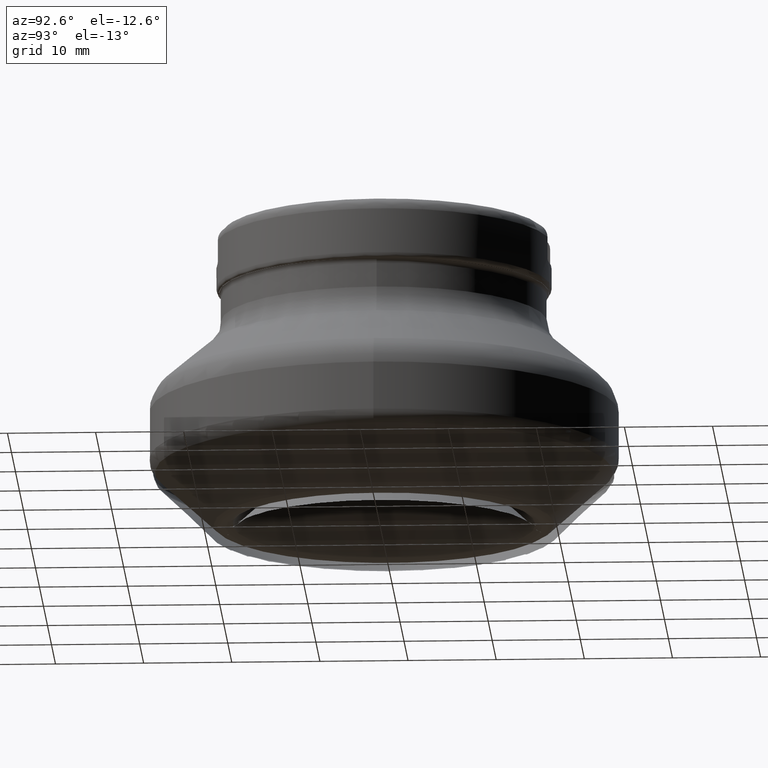
[diagram: clean part render]
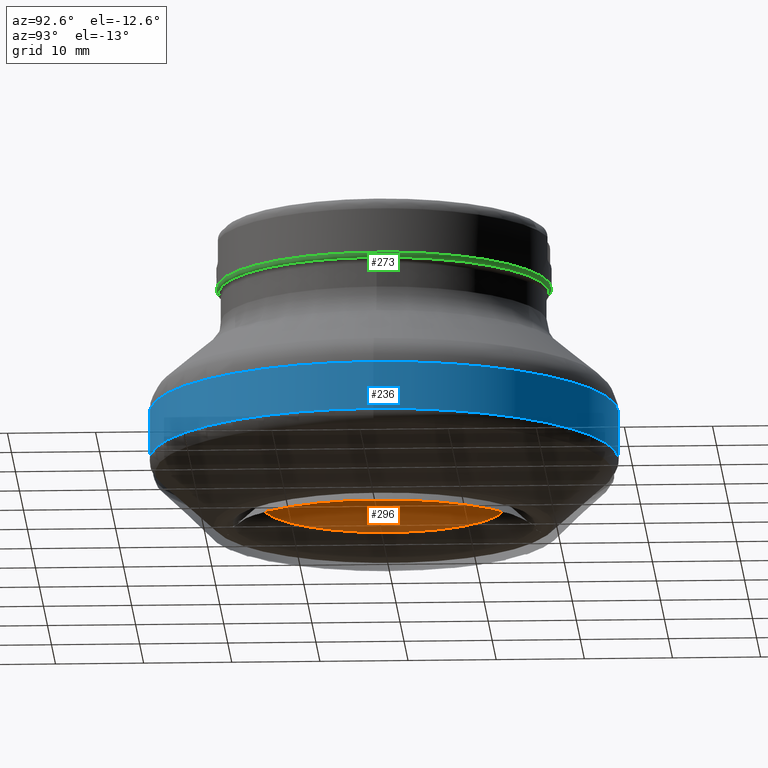
[diagram: same view with three faces highlighted in distinct colors, each labeled with its STEP entity id]
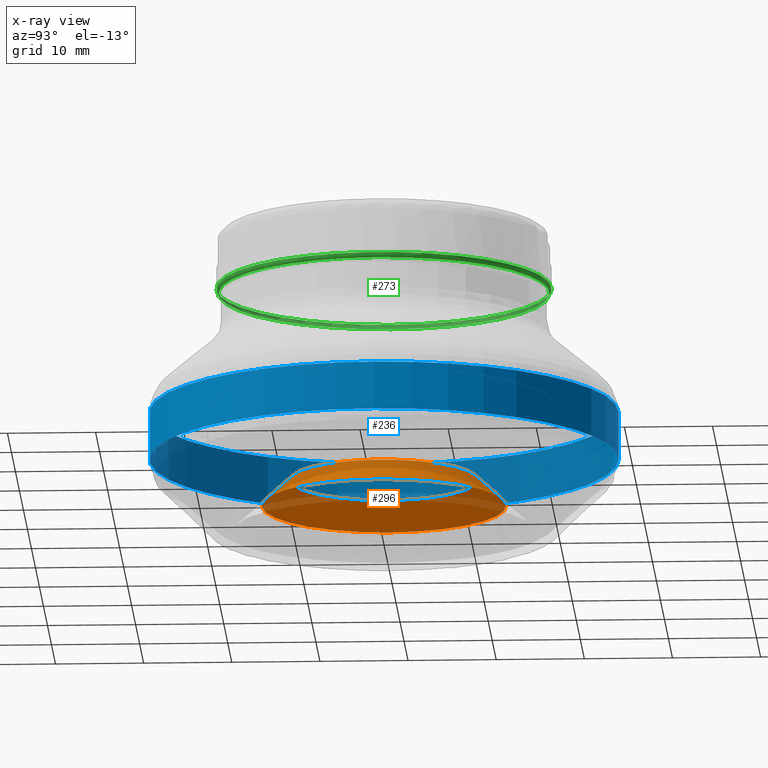
[diagram: x-ray of the same camera — body ghosted, the three highlighted faces saturated]
A machine part, auxiliary view with three faces highlighted in distinct colors.
The next image is the same camera in x-ray (body ghosted, the three faces saturated) — at least one of them is partly hidden behind the body in this view.
Their STEP definitions:

[orange] entity #296 — the highlighted face is a SurfaceOfRevolution surface.
#137=SURFACE_OF_REVOLUTION('',#339,#161);
#161=AXIS1_PLACEMENT('',#2382,#1588);
#296=ADVANCED_FACE('',(#474,#475),#137,.F.);
#339=LINE('',#2381,#371);
#371=VECTOR('',#1587,4.41942801874017);
#474=FACE_BOUND('',#600,.T.);
#475=FACE_BOUND('',#601,.T.);
#600=EDGE_LOOP('',(#834));
#601=EDGE_LOOP('',(#835));
#834=ORIENTED_EDGE('',*,*,#1047,.T.);
#835=ORIENTED_EDGE('',*,*,#1028,.F.);
#911=VERTEX_POINT('',#2256);
#930=VERTEX_POINT('',#2372);
#1028=EDGE_CURVE('',#911,#911,#1093,.T.);
#1047=EDGE_CURVE('',#930,#930,#1112,.T.);
#1093=CIRCLE('',#1273,13.865354004679);
#1112=CIRCLE('',#1292,10.6371602183487);
#1273=AXIS2_PLACEMENT_3D('',#2255,#1517,#1518);
#1292=AXIS2_PLACEMENT_3D('',#2371,#1584,#1585);
#1517=DIRECTION('',(-1.17145536458252E-15,0.,-1.));
#1518=DIRECTION('',(-1.,0.,1.1572868711012E-15));
#1584=DIRECTION('',(-1.17145536458252E-15,0.,-1.));
#1585=DIRECTION('',(-1.,0.,1.14157012610295E-15));
#1587=DIRECTION('',(0.543790863400615,0.497478638986056,0.675874619019382));
#1588=DIRECTION('',(-1.17145536458252E-15,0.,-1.));
#2255=CARTESIAN_POINT('',(3.87676402243091E-15,0.,3.30935700978457));
#2256=CARTESIAN_POINT('',(-13.865354004679,0.,3.30935700978458));
#2371=CARTESIAN_POINT('',(7.37587686349476E-15,0.,6.29633623823416));
#2372=CARTESIAN_POINT('',(-10.6371602183487,0.,6.29633623823417));
#2381=CARTESIAN_POINT('',(-9.06922856398278,-10.487951893926,3.30935700978458));
#2382=CARTESIAN_POINT('',(0.,0.,0.));

[blue] entity #236 — the highlighted cylindrical surface (bore or boss wall) has radius 26.6 mm, axis along (0, 0, 1).
#236=ADVANCED_FACE('',(#390,#391),#298,.T.);
#298=CYLINDRICAL_SURFACE('',#1204,26.6);
#390=FACE_BOUND('',#498,.T.);
#391=FACE_BOUND('',#499,.T.);
#498=EDGE_LOOP('',(#651));
#499=EDGE_LOOP('',(#652));
#651=ORIENTED_EDGE('',*,*,#970,.T.);
#652=ORIENTED_EDGE('',*,*,#971,.T.);
#871=VERTEX_POINT('',#2009);
#872=VERTEX_POINT('',#2011);
#970=EDGE_CURVE('',#871,#871,#1067,.T.);
#971=EDGE_CURVE('',#872,#872,#1068,.T.);
#1067=CIRCLE('',#1202,26.6);
#1068=CIRCLE('',#1203,26.6);
#1202=AXIS2_PLACEMENT_3D('',#2008,#1363,#1364);
#1203=AXIS2_PLACEMENT_3D('',#2010,#1365,#1366);
#1204=AXIS2_PLACEMENT_3D('',#2012,#1367,#1368);
#1363=DIRECTION('',(1.17145536458252E-15,0.,1.));
#1364=DIRECTION('',(1.,0.,-1.17387302885649E-15));
#1365=DIRECTION('',(-1.17145536458252E-15,0.,-1.));
#1366=DIRECTION('',(1.,0.,-1.17387302885649E-15));
#1367=DIRECTION('',(1.17145536458252E-15,0.,1.));
#1368=DIRECTION('',(1.,0.,-1.17145536458252E-15));
#2008=CARTESIAN_POINT('',(1.0183771085693E-14,0.,8.69326428781366));
#2009=CARTESIAN_POINT('',(26.6,0.,8.69326428781362));
#2010=CARTESIAN_POINT('',(1.6558251402554E-14,0.,14.13476936738));
#2011=CARTESIAN_POINT('',(26.6,0.,14.13476936738));
#2012=CARTESIAN_POINT('',(0.,0.,0.));

[green] entity #273 — the highlighted toroidal blend (fillet) surface has major radius 18.2 mm and minor (blend) radius 0.8 mm.
#197=TOROIDAL_SURFACE('',#1269,18.2,0.8);
#273=ADVANCED_FACE('',(#428,#429),#197,.T.);
#428=FACE_BOUND('',#554,.T.);
#429=FACE_BOUND('',#555,.T.);
#554=EDGE_LOOP('',(#788));
#555=EDGE_LOOP('',(#789));
#788=ORIENTED_EDGE('',*,*,#976,.F.);
#789=ORIENTED_EDGE('',*,*,#931,.F.);
#836=VERTEX_POINT('',#1787);
#877=VERTEX_POINT('',#2024);
#931=EDGE_CURVE('',#836,#836,#1048,.T.);
#976=EDGE_CURVE('',#877,#877,#1073,.T.);
#1048=CIRCLE('',#1174,19.);
#1073=CIRCLE('',#1211,18.7656854249492);
#1174=AXIS2_PLACEMENT_3D('',#1786,#1295,#1296);
#1211=AXIS2_PLACEMENT_3D('',#2023,#1381,#1382);
#1269=AXIS2_PLACEMENT_3D('',#2251,#1509,#1510);
#1295=DIRECTION('',(1.17145536458252E-15,0.,1.));
#1296=DIRECTION('',(-1.,0.,1.09561482693272E-15));
#1381=DIRECTION('',(-1.17145536458252E-15,0.,-1.));
#1382=DIRECTION('',(-1.,0.,1.10929503720901E-15));
#1509=DIRECTION('',(-1.17145536458252E-15,0.,-1.));
#1510=DIRECTION('',(-1.,0.,1.09561482693272E-15));
#1786=CARTESIAN_POINT('',(3.34525138251216E-14,0.,28.5563708498985));
#1787=CARTESIAN_POINT('',(-19.,0.,28.5563708498985));
#2023=CARTESIAN_POINT('',(3.27898385993987E-14,0.,27.9906854249493));
#2024=CARTESIAN_POINT('',(-18.7656854249492,0.,27.9906854249493));
#2251=CARTESIAN_POINT('',(3.34525138251216E-14,0.,28.5563708498985));